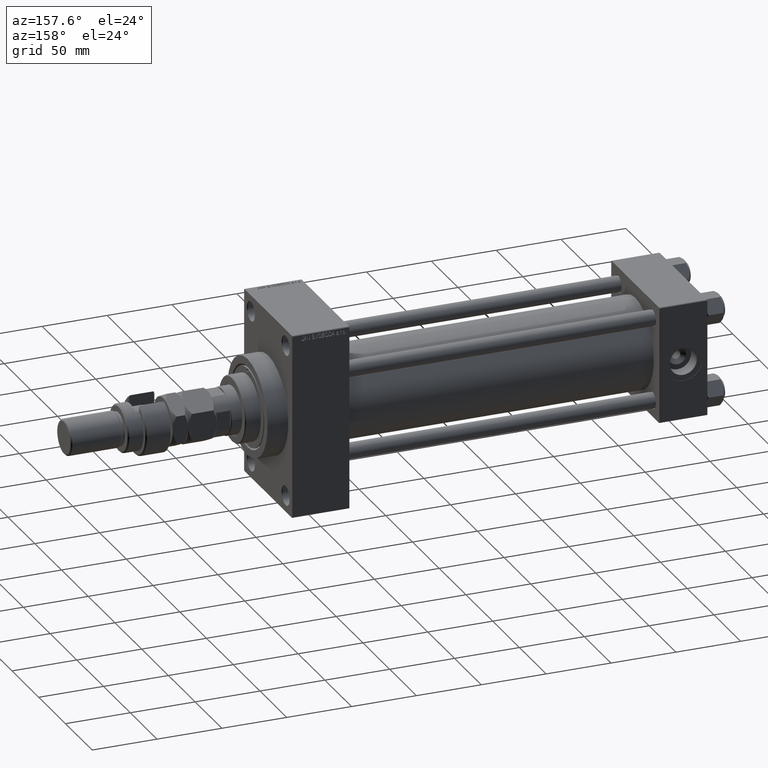
[diagram: clean part render]
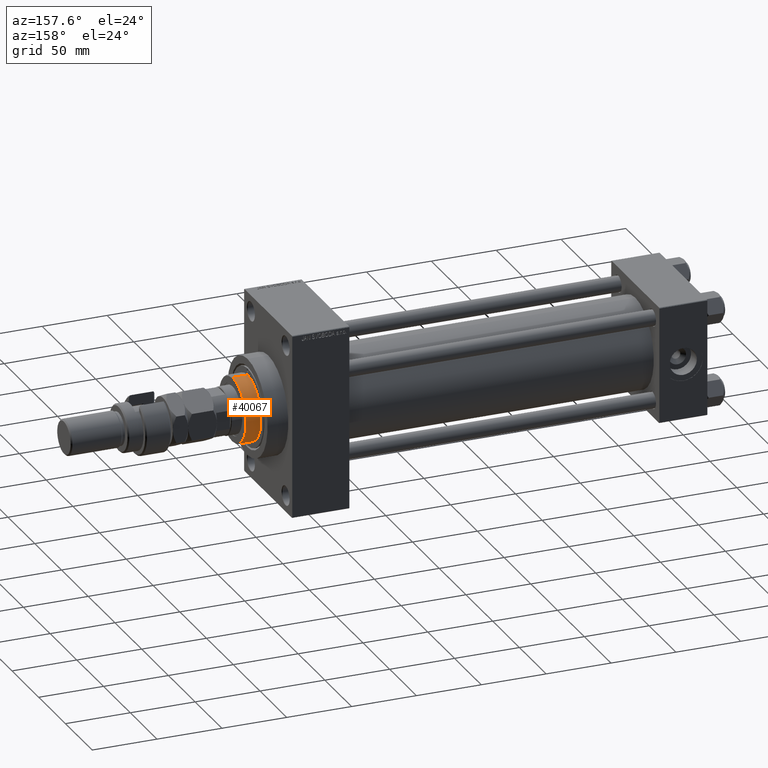
[diagram: same view with one face highlighted and labeled with its STEP entity id]
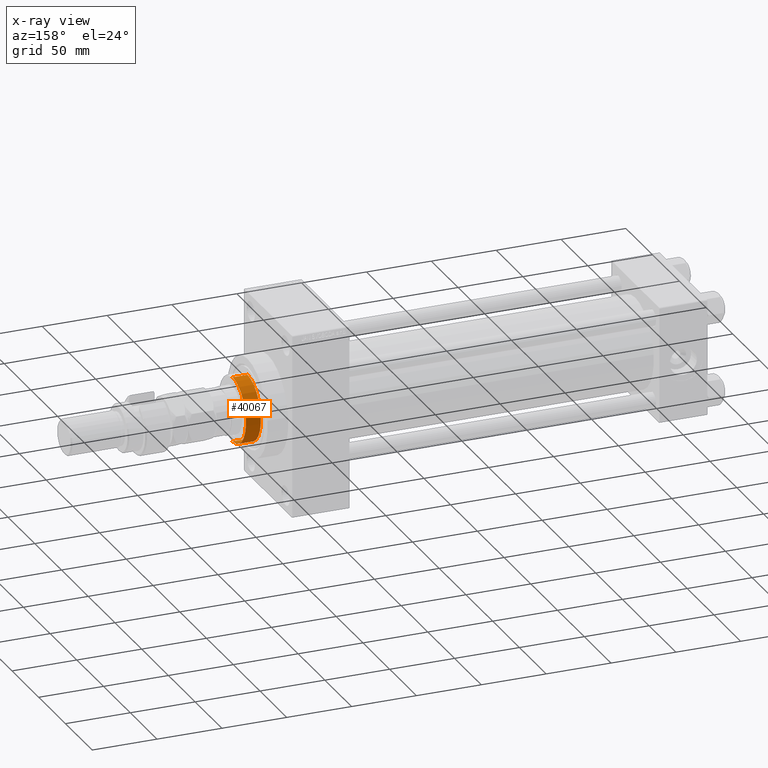
[diagram: x-ray of the same camera — body ghosted, the highlighted face saturated]
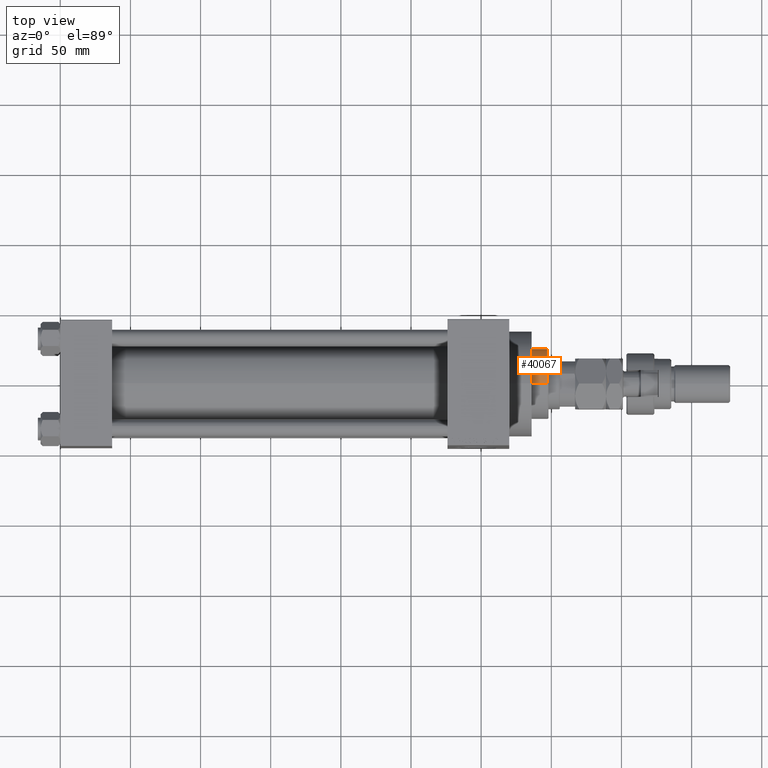
[diagram: same view with one face highlighted and labeled with its STEP entity id]
A machine part, auxiliary view. The second image highlights one B-rep face of the part: STEP entity #40067.
The next image is the same camera in x-ray: the body ghosted, the highlighted face saturated — about 0% of this face is hidden behind the body in this view.
A second angle (top view) of the same face is appended — the face is thin or edge-on in the first view.
In plain terms, the highlighted cylindrical surface (edge-blend (fillet) strip) has radius 25 mm, axis along (-1, 0, 0).
Its self-contained STEP definition (entity closure, byte-faithful):
#611 = VERTEX_POINT ( 'NONE', #23495 ) ;
#3067 = ORIENTED_EDGE ( 'NONE', *, *, #18273, .T. ) ;
#3676 = VERTEX_POINT ( 'NONE', #8932 ) ;
#3731 = CIRCLE ( 'NONE', #28073, 25.00000000000000000 ) ;
#4411 = CARTESIAN_POINT ( 'NONE',  ( 25.00000000000000000, 3.061616997868383043E-15, 54.76000000000000512 ) ) ;
#4900 = CARTESIAN_POINT ( 'NONE',  ( 25.00000000000000000, 3.061616997868383043E-15, 55.26000000000000512 ) ) ;
#5761 = DIRECTION ( 'NONE',  ( 0.000000000000000000, 0.000000000000000000, -1.000000000000000000 ) ) ;
#5972 = EDGE_CURVE ( 'NONE', #611, #36729, #9943, .T. ) ;
#7463 = VECTOR ( 'NONE', #17343, 1000.000000000000000 ) ;
#7785 = AXIS2_PLACEMENT_3D ( 'NONE', #43087, #13057, #35205 ) ;
#8932 = CARTESIAN_POINT ( 'NONE',  ( 25.00000000000000000, 3.061616997868383043E-15, 43.25999999999999801 ) ) ;
#9943 = LINE ( 'NONE', #48371, #7463 ) ;
#10060 = DIRECTION ( 'NONE',  ( 1.000000000000000000, 0.000000000000000000, 0.000000000000000000 ) ) ;
#12627 = VECTOR ( 'NONE', #39990, 1000.000000000000000 ) ;
#12812 = FACE_OUTER_BOUND ( 'NONE', #42236, .T. ) ;
#13057 = DIRECTION ( 'NONE',  ( -0.000000000000000000, -0.000000000000000000, -1.000000000000000000 ) ) ;
#14182 = DIRECTION ( 'NONE',  ( 1.000000000000000000, 0.000000000000000000, 0.000000000000000000 ) ) ;
#16133 = CYLINDRICAL_SURFACE ( 'NONE', #7785, 25.00000000000000000 ) ;
#17343 = DIRECTION ( 'NONE',  ( -0.000000000000000000, -0.000000000000000000, -1.000000000000000000 ) ) ;
#18033 = DIRECTION ( 'NONE',  ( 0.000000000000000000, 0.000000000000000000, 1.000000000000000000 ) ) ;
#18273 = EDGE_CURVE ( 'NONE', #36729, #3676, #3731, .T. ) ;
#20410 = CARTESIAN_POINT ( 'NONE',  ( -25.00000000000000000, 0.000000000000000000, 43.25999999999999801 ) ) ;
#21211 = EDGE_CURVE ( 'NONE', #42823, #3676, #39741, .T. ) ;
#23495 = CARTESIAN_POINT ( 'NONE',  ( -25.00000000000000000, 0.000000000000000000, 54.76000000000000512 ) ) ;
#25590 = CARTESIAN_POINT ( 'NONE',  ( 0.000000000000000000, 0.000000000000000000, 54.76000000000000512 ) ) ;
#25659 = AXIS2_PLACEMENT_3D ( 'NONE', #25590, #5761, #10060 ) ;
#28073 = AXIS2_PLACEMENT_3D ( 'NONE', #33267, #18033, #14182 ) ;
#28729 = ORIENTED_EDGE ( 'NONE', *, *, #5972, .T. ) ;
#29976 = ORIENTED_EDGE ( 'NONE', *, *, #39953, .T. ) ;
#33267 = CARTESIAN_POINT ( 'NONE',  ( 0.000000000000000000, 0.000000000000000000, 43.25999999999999801 ) ) ;
#35205 = DIRECTION ( 'NONE',  ( -1.000000000000000000, 0.000000000000000000, 0.000000000000000000 ) ) ;
#36729 = VERTEX_POINT ( 'NONE', #20410 ) ;
#39741 = LINE ( 'NONE', #4900, #12627 ) ;
#39953 = EDGE_CURVE ( 'NONE', #42823, #611, #43494, .T. ) ;
#39990 = DIRECTION ( 'NONE',  ( -0.000000000000000000, -0.000000000000000000, -1.000000000000000000 ) ) ;
#40067 = ADVANCED_FACE ( 'NONE', ( #12812 ), #16133, .T. ) ;
#40648 = ORIENTED_EDGE ( 'NONE', *, *, #21211, .F. ) ;
#42236 = EDGE_LOOP ( 'NONE', ( #40648, #29976, #28729, #3067 ) ) ;
#42823 = VERTEX_POINT ( 'NONE', #4411 ) ;
#43087 = CARTESIAN_POINT ( 'NONE',  ( 0.000000000000000000, 0.000000000000000000, 55.26000000000000512 ) ) ;
#43494 = CIRCLE ( 'NONE', #25659, 25.00000000000000000 ) ;
#48371 = CARTESIAN_POINT ( 'NONE',  ( -25.00000000000000000, 0.000000000000000000, 55.26000000000000512 ) ) ;